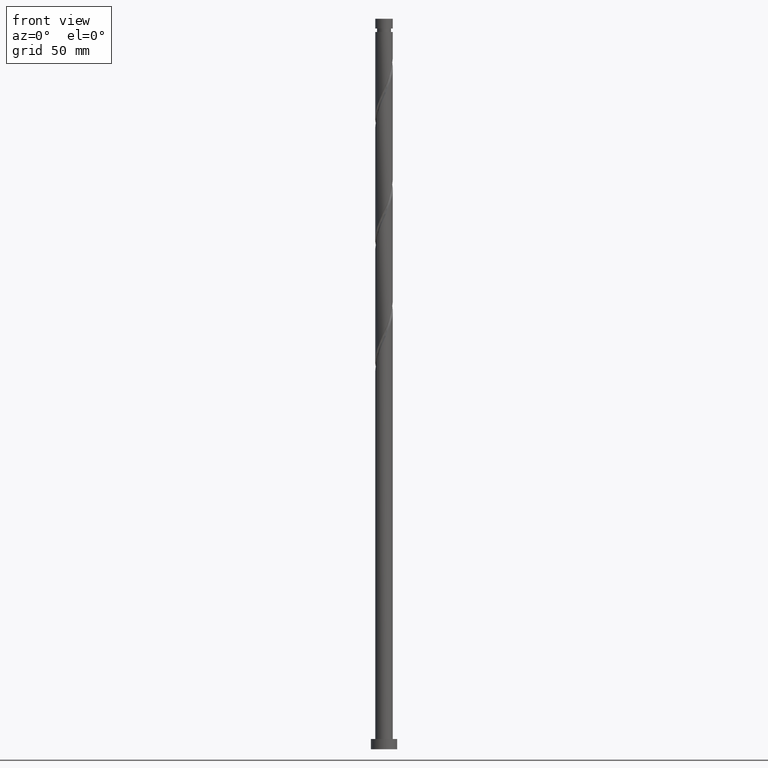
[diagram: clean part render]
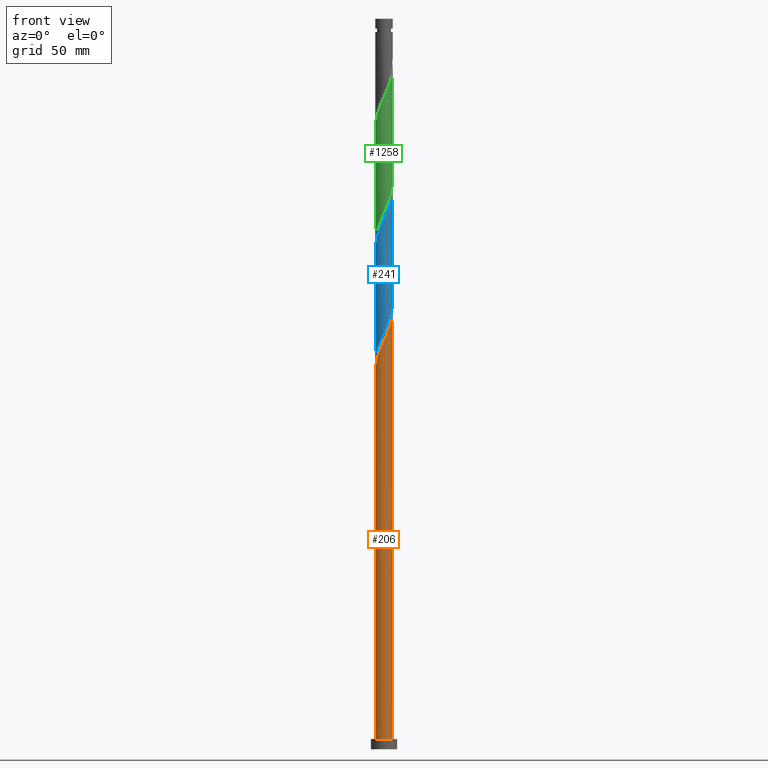
[diagram: same view with three faces highlighted in distinct colors, each labeled with its STEP entity id]
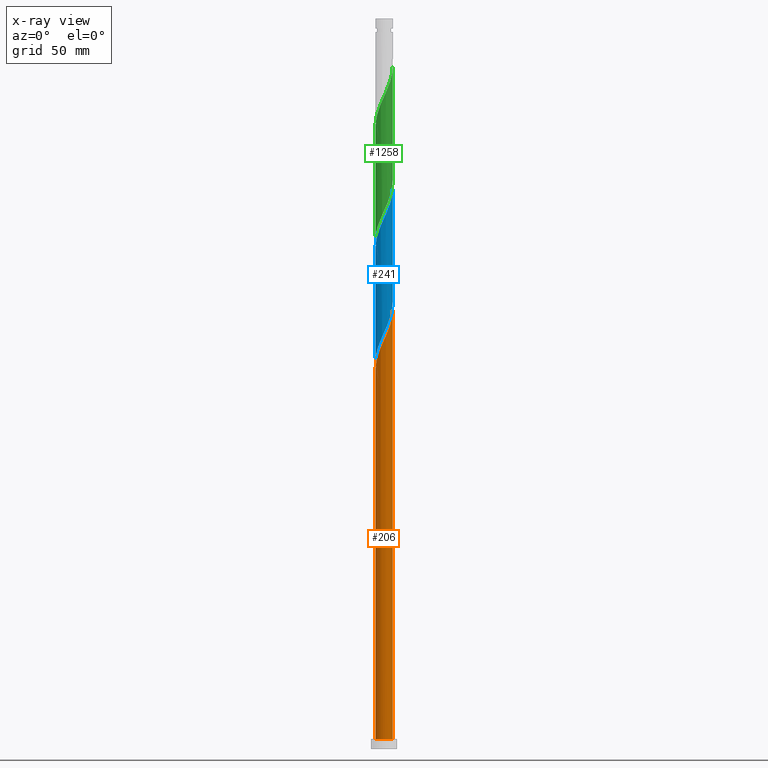
[diagram: x-ray of the same camera — body ghosted, the three highlighted faces saturated]
A machine part, front view with three faces highlighted in distinct colors.
The next image is the same camera in x-ray (body ghosted, the three faces saturated) — at least one of them is partly hidden behind the body in this view.
Their STEP definitions:

[orange] entity #206 — the highlighted cylindrical surface (edge-blend (fillet) strip) has radius 6 mm, axis along (-0, -0, -1).
#67 = CARTESIAN_POINT ( 'NONE',  ( -2.273990787862928187, -5.552383803080860325, 274.8008992748709147 ) ) ;
#78 = CARTESIAN_POINT ( 'NONE',  ( -6.000000000000011546, -0.01195592024557649673, 259.1495558513913124 ) ) ;
#85 = CARTESIAN_POINT ( 'NONE',  ( -4.225698837597089863, -4.259515152447603370, 269.5925659415376003 ) ) ;
#99 = ORIENTED_EDGE ( 'NONE', *, *, #363, .T. ) ;
#126 = CARTESIAN_POINT ( 'NONE',  ( -6.000000000000000888, 0.000000000000000000, 7.000000000000000000 ) ) ;
#142 = CARTESIAN_POINT ( 'NONE',  ( -6.000000000000010658, -1.042067320674493744E-14, 259.1232022968740694 ) ) ;
#159 = CYLINDRICAL_SURFACE ( 'NONE', #1553, 6.000000000000000888 ) ;
#176 = EDGE_CURVE ( 'NONE', #1545, #1126, #1456, .T. ) ;
#206 = ADVANCED_FACE ( 'NONE', ( #681 ), #159, .T. ) ;
#217 = DIRECTION ( 'NONE',  ( -0.000000000000000000, -0.000000000000000000, -1.000000000000000000 ) ) ;
#225 = CARTESIAN_POINT ( 'NONE',  ( 2.863233488642344060, -5.305762341528935444, 286.5196492748708579 ) ) ;
#236 = CARTESIAN_POINT ( 'NONE',  ( -5.880000000000010552, -1.193984924527949465, 261.7800659415376003 ) ) ;
#252 = CARTESIAN_POINT ( 'NONE',  ( -5.534082545362443817, -2.318173932455211084, 264.3842326082042291 ) ) ;
#333 = EDGE_CURVE ( 'NONE', #1816, #820, #1058, .T. ) ;
#363 = EDGE_CURVE ( 'NONE', #1816, #1545, #1040, .T. ) ;
#367 = CARTESIAN_POINT ( 'NONE',  ( 0.000000000000000000, 0.000000000000000000, 7.000000000000000000 ) ) ;
#379 = CARTESIAN_POINT ( 'NONE',  ( 2.318173932455211972, -5.534082545362443817, 285.2175659415376003 ) ) ;
#388 = CARTESIAN_POINT ( 'NONE',  ( 6.000000000000010658, 8.335047501442204261E-15, 300.7898689635406981 ) ) ;
#395 = CARTESIAN_POINT ( 'NONE',  ( 4.675710161127278219, -3.806173212611419387, 291.7279826082041723 ) ) ;
#421 = EDGE_CURVE ( 'NONE', #820, #1126, #2008, .T. ) ;
#444 = CARTESIAN_POINT ( 'NONE',  ( 6.000000000000010658, 8.335047501442204261E-15, 300.7898689635406981 ) ) ;
#454 = ORIENTED_EDGE ( 'NONE', *, *, #421, .F. ) ;
#478 = DIRECTION ( 'NONE',  ( 1.000000000000000000, 0.000000000000000000, 0.000000000000000000 ) ) ;
#524 = CARTESIAN_POINT ( 'NONE',  ( 0.000000000000000000, 0.000000000000000000, 500.0000000000000000 ) ) ;
#534 = CARTESIAN_POINT ( 'NONE',  ( -5.999952352179565018, -0.02391174554553879977, 259.1758992748709147 ) ) ;
#546 = CARTESIAN_POINT ( 'NONE',  ( 1.193984924527949243, -5.880000000000010552, 282.6133992748709716 ) ) ;
#555 = CARTESIAN_POINT ( 'NONE',  ( -1.147080348408325401, -5.889329900276903729, 277.4050659415376003 ) ) ;
#563 = CARTESIAN_POINT ( 'NONE',  ( -1.727128715119906399, -5.776352346998743670, 276.1029826082041723 ) ) ;
#572 = CARTESIAN_POINT ( 'NONE',  ( 5.552383803080857660, -2.273990787862928187, 295.6342326082043428 ) ) ;
#681 = FACE_OUTER_BOUND ( 'NONE', #1061, .T. ) ;
#710 = CARTESIAN_POINT ( 'NONE',  ( -5.305762341528935444, -2.863233488642344060, 265.6863159415376003 ) ) ;
#721 = CARTESIAN_POINT ( 'NONE',  ( 0.02391174554553730791, -5.999952352179565018, 280.0092326082041723 ) ) ;
#730 = CARTESIAN_POINT ( 'NONE',  ( -0.5670319816967448467, -6.002307453555063788, 278.7071492748708579 ) ) ;
#740 = CARTESIAN_POINT ( 'NONE',  ( 5.889329900276901952, -1.147080348408328732, 298.2383992748709147 ) ) ;
#820 = VERTEX_POINT ( 'NONE', #444 ) ;
#900 = CARTESIAN_POINT ( 'NONE',  ( 5.002062710145125379, -3.313513036608686235, 293.0300659415375435 ) ) ;
#933 = VECTOR ( 'NONE', #1030, 1000.000000000000000 ) ;
#999 = DIRECTION ( 'NONE',  ( -1.000000000000000000, 0.000000000000000000, 0.000000000000000000 ) ) ;
#1012 = DIRECTION ( 'NONE',  ( -0.000000000000000000, -0.000000000000000000, -1.000000000000000000 ) ) ;
#1030 = DIRECTION ( 'NONE',  ( -0.000000000000000000, -0.000000000000000000, -1.000000000000000000 ) ) ;
#1040 = LINE ( 'NONE', #1999, #933 ) ;
#1057 = CARTESIAN_POINT ( 'NONE',  ( 6.000000000000008882, -0.5788788895738985474, 299.5138888581245737 ) ) ;
#1058 =( BOUNDED_CURVE ( )  B_SPLINE_CURVE ( 2, ( #1853, #78, #534, #1834, #236, #1531, #252, #710, #1393, #2031, #85, #1547, #1845, #1209, #67, #563, #555, #730, #721, #1353, #546, #1375, #379, #225, #2016, #1202, #1870, #395, #900, #1365, #572, #1230, #740, #1057, #388 ),
 .UNSPECIFIED., .F., .T. ) 
 B_SPLINE_CURVE_WITH_KNOTS ( ( 3, 2, 2, 2, 2, 2, 2, 2, 2, 2, 2, 2, 2, 2, 2, 2, 2, 3 ),
 ( 0.05452869021808735145, 0.05468750000000000000, 0.06250000000000000000, 0.07031250000000000000, 0.07812500000000000000, 0.08593750000000000000, 0.09375000000000000000, 0.1015625000000000000, 0.1093750000000000000, 0.1171875000000000000, 0.1250000000000000000, 0.1328125000000000000, 0.1406250000000000000, 0.1484375000000000000, 0.1562500000000000000, 0.1640625000000000000, 0.1718750000000000000, 0.1795286902180870947 ),
 .UNSPECIFIED. ) 
 CURVE ( )  GEOMETRIC_REPRESENTATION_ITEM ( )  RATIONAL_B_SPLINE_CURVE ( ( 0.9089165573359503369, 0.9090019243628550960, 0.9090909090909468082, 0.9047133878838529153, 0.9090909090909468082, 0.9047133878838529153, 0.9090909090909468082, 0.9047133878838529153, 0.9090909090909468082, 0.9047133878838529153, 0.9090909090909468082, 0.9047133878838529153, 0.9090909090909468082, 0.9047133878838529153, 0.9090909090909468082, 0.9047133878838529153, 0.9090909090909468082, 0.9047133878838529153, 0.9090909090909468082, 0.9047133878838529153, 0.9090909090909468082, 0.9047133878838529153, 0.9090909090909468082, 0.9047133878838529153, 0.9090909090909468082, 0.9047133878838529153, 0.9090909090909468082, 0.9047133878838529153, 0.9090909090909468082, 0.9047133878838529153, 0.9090909090909468082, 0.9047133878838529153, 0.9090909090909468082, 0.9048023726119448495, 0.9089165573359500039 ) ) 
 REPRESENTATION_ITEM ( '' )  );
#1061 = EDGE_LOOP ( 'NONE', ( #454, #1575, #99, #1958 ) ) ;
#1068 = VECTOR ( 'NONE', #217, 1000.000000000000000 ) ;
#1126 = VERTEX_POINT ( 'NONE', #1141 ) ;
#1141 = CARTESIAN_POINT ( 'NONE',  ( 6.000000000000000888, 7.347880794884120722E-16, 7.000000000000000000 ) ) ;
#1202 = CARTESIAN_POINT ( 'NONE',  ( 3.843320143767929409, -4.645224462582758562, 289.1238159415376003 ) ) ;
#1209 = CARTESIAN_POINT ( 'NONE',  ( -2.820852860605950418, -5.328415259162975204, 273.4988159415375435 ) ) ;
#1230 = CARTESIAN_POINT ( 'NONE',  ( 5.776352346998743670, -1.727128715119906843, 296.9363159415376003 ) ) ;
#1353 = CARTESIAN_POINT ( 'NONE',  ( 0.6148554727878217108, -5.997597250804064473, 281.3113159415376003 ) ) ;
#1365 = CARTESIAN_POINT ( 'NONE',  ( 5.328415259162974316, -2.820852860605952639, 294.3321492748708579 ) ) ;
#1375 = CARTESIAN_POINT ( 'NONE',  ( 1.773114376268076331, -5.762402749195954854, 283.9154826082042860 ) ) ;
#1384 = CARTESIAN_POINT ( 'NONE',  ( 6.000000000000000888, 7.347880794884120722E-16, 500.0000000000000000 ) ) ;
#1393 = CARTESIAN_POINT ( 'NONE',  ( -4.975493402055846559, -3.353276816205137845, 266.9883992748709147 ) ) ;
#1424 = AXIS2_PLACEMENT_3D ( 'NONE', #367, #1987, #478 ) ;
#1456 = CIRCLE ( 'NONE', #1424, 6.000000000000000888 ) ;
#1531 = CARTESIAN_POINT ( 'NONE',  ( -5.762402749195954854, -1.773114376268076775, 263.0821492748709147 ) ) ;
#1545 = VERTEX_POINT ( 'NONE', #126 ) ;
#1547 = CARTESIAN_POINT ( 'NONE',  ( -3.806173212611418943, -4.675710161127278219, 270.8946492748709147 ) ) ;
#1553 = AXIS2_PLACEMENT_3D ( 'NONE', #524, #1012, #999 ) ;
#1575 = ORIENTED_EDGE ( 'NONE', *, *, #333, .F. ) ;
#1816 = VERTEX_POINT ( 'NONE', #142 ) ;
#1834 = CARTESIAN_POINT ( 'NONE',  ( -5.997597250804064473, -0.6148554727878219328, 260.4779826082042291 ) ) ;
#1845 = CARTESIAN_POINT ( 'NONE',  ( -3.313513036608685347, -5.002062710145125379, 272.1967326082042291 ) ) ;
#1853 = CARTESIAN_POINT ( 'NONE',  ( -6.000000000000010658, -1.042067320674493744E-14, 259.1232022968740694 ) ) ;
#1870 = CARTESIAN_POINT ( 'NONE',  ( 4.259515152447603370, -4.225698837597089863, 290.4258992748709147 ) ) ;
#1958 = ORIENTED_EDGE ( 'NONE', *, *, #176, .T. ) ;
#1987 = DIRECTION ( 'NONE',  ( 0.000000000000000000, 0.000000000000000000, 1.000000000000000000 ) ) ;
#1999 = CARTESIAN_POINT ( 'NONE',  ( -6.000000000000000888, 0.000000000000000000, 500.0000000000000000 ) ) ;
#2008 = LINE ( 'NONE', #1384, #1068 ) ;
#2016 = CARTESIAN_POINT ( 'NONE',  ( 3.353276816205137845, -4.975493402055846559, 287.8217326082042291 ) ) ;
#2031 = CARTESIAN_POINT ( 'NONE',  ( -4.645224462582757674, -3.843320143767929853, 268.2904826082042860 ) ) ;

[blue] entity #241 — the highlighted cylindrical surface (edge-blend (fillet) strip) has radius 6 mm, axis along (-0, -0, -1).
#2 = CARTESIAN_POINT ( 'NONE',  ( -5.762402749195954854, -1.773114376268076775, 346.4154826082042291 ) ) ;
#14 = CARTESIAN_POINT ( 'NONE',  ( 4.259515152447603370, -4.225698837597089863, 373.7592326082041723 ) ) ;
#22 = ORIENTED_EDGE ( 'NONE', *, *, #171, .T. ) ;
#28 = DIRECTION ( 'NONE',  ( -0.000000000000000000, -0.000000000000000000, -1.000000000000000000 ) ) ;
#96 = CARTESIAN_POINT ( 'NONE',  ( -5.552383803080851443, -2.273990787862920637, 269.5925659415376003 ) ) ;
#104 = CARTESIAN_POINT ( 'NONE',  ( -6.000000000000007105, -0.5788788895738660178, 265.7129096916170283 ) ) ;
#123 = CARTESIAN_POINT ( 'NONE',  ( -0.02391174554553976081, -5.999952352179555248, 285.2175659415375435 ) ) ;
#134 = CARTESIAN_POINT ( 'NONE',  ( 4.225698837597079205, -4.259515152447596265, 295.6342326082041723 ) ) ;
#156 = CARTESIAN_POINT ( 'NONE',  ( 5.776352346998743670, -1.727128715119906843, 380.2696492748708579 ) ) ;
#168 = CARTESIAN_POINT ( 'NONE',  ( -5.997597250804064473, -0.6148554727878219328, 343.8113159415376003 ) ) ;
#171 = EDGE_CURVE ( 'NONE', #509, #2027, #1478, .T. ) ;
#233 = ORIENTED_EDGE ( 'NONE', *, *, #840, .F. ) ;
#241 = ADVANCED_FACE ( 'NONE', ( #1140 ), #1974, .T. ) ;
#262 = CARTESIAN_POINT ( 'NONE',  ( 6.000000000000000000, 5.026749354067485949E-15, 306.1035962528677032 ) ) ;
#281 = CARTESIAN_POINT ( 'NONE',  ( 5.999952352179555248, -0.02391174554553997939, 306.0508992748709147 ) ) ;
#293 = CARTESIAN_POINT ( 'NONE',  ( 3.806173212611408285, -4.675710161127275555, 294.3321492748709716 ) ) ;
#309 = CARTESIAN_POINT ( 'NONE',  ( -5.328415259162966322, -2.820852860605944201, 270.8946492748709716 ) ) ;
#312 = LINE ( 'NONE', #2077, #973 ) ;
#319 = CARTESIAN_POINT ( 'NONE',  ( 5.889329900276901952, -1.147080348408328732, 381.5717326082042860 ) ) ;
#354 = CARTESIAN_POINT ( 'NONE',  ( 0.02391174554553730791, -5.999952352179565018, 363.3425659415374867 ) ) ;
#365 = CARTESIAN_POINT ( 'NONE',  ( -5.880000000000010552, -1.193984924527949465, 345.1133992748709147 ) ) ;
#413 = VERTEX_POINT ( 'NONE', #1555 ) ;
#424 = CARTESIAN_POINT ( 'NONE',  ( -5.889329900276893071, -1.147080348408322070, 266.9883992748708579 ) ) ;
#453 = CARTESIAN_POINT ( 'NONE',  ( -1.773114376268075665, -5.762402749195944196, 281.3113159415376572 ) ) ;
#466 = CARTESIAN_POINT ( 'NONE',  ( 5.305762341528925674, -2.863233488642342728, 299.5404826082042291 ) ) ;
#477 = CARTESIAN_POINT ( 'NONE',  ( 5.552383803080857660, -2.273990787862928187, 378.9675659415376572 ) ) ;
#488 = CARTESIAN_POINT ( 'NONE',  ( 1.773114376268076331, -5.762402749195954854, 367.2488159415374867 ) ) ;
#509 = VERTEX_POINT ( 'NONE', #1050 ) ;
#522 = CARTESIAN_POINT ( 'NONE',  ( -0.5670319816967448467, -6.002307453555063788, 362.0404826082041723 ) ) ;
#581 = CARTESIAN_POINT ( 'NONE',  ( -3.353276816205132516, -4.975493402055837677, 277.4050659415375435 ) ) ;
#585 = VERTEX_POINT ( 'NONE', #590 ) ;
#590 = CARTESIAN_POINT ( 'NONE',  ( 6.000000000000000000, 5.026749354067486738E-15, 306.1035962528677032 ) ) ;
#595 = AXIS2_PLACEMENT_3D ( 'NONE', #1624, #1952, #1657 ) ;
#638 = CARTESIAN_POINT ( 'NONE',  ( -2.273990787862928187, -5.552383803080860325, 358.1342326082042291 ) ) ;
#647 = EDGE_CURVE ( 'NONE', #509, #413, #1784, .T. ) ;
#667 = CARTESIAN_POINT ( 'NONE',  ( 2.318173932455211972, -5.534082545362443817, 368.5508992748708579 ) ) ;
#668 = CARTESIAN_POINT ( 'NONE',  ( -6.000000000000000888, 0.000000000000000000, 500.0000000000000000 ) ) ;
#678 = CARTESIAN_POINT ( 'NONE',  ( -1.727128715119906399, -5.776352346998743670, 359.4363159415376572 ) ) ;
#754 = CARTESIAN_POINT ( 'NONE',  ( -6.000000000000000000, 4.571042933203746211E-14, 264.4369295862009039 ) ) ;
#791 = CARTESIAN_POINT ( 'NONE',  ( 3.313513036608677798, -5.002062710145120050, 293.0300659415375435 ) ) ;
#814 = CARTESIAN_POINT ( 'NONE',  ( -3.806173212611418943, -4.675710161127278219, 354.2279826082042860 ) ) ;
#822 = CARTESIAN_POINT ( 'NONE',  ( -2.820852860605950418, -5.328415259162975204, 356.8321492748708579 ) ) ;
#831 = CARTESIAN_POINT ( 'NONE',  ( 3.843320143767929409, -4.645224462582758562, 372.4571492748708010 ) ) ;
#840 = EDGE_CURVE ( 'NONE', #585, #2027, #1512, .T. ) ;
#909 = CARTESIAN_POINT ( 'NONE',  ( 4.975493402055835901, -3.353276816205134736, 298.2383992748709716 ) ) ;
#932 = CARTESIAN_POINT ( 'NONE',  ( 1.727128715119901736, -5.776352346998731235, 289.1238159415376003 ) ) ;
#964 = CARTESIAN_POINT ( 'NONE',  ( -1.147080348408325401, -5.889329900276903729, 360.7383992748708579 ) ) ;
#973 = VECTOR ( 'NONE', #2052, 1000.000000000000000 ) ;
#986 = CARTESIAN_POINT ( 'NONE',  ( 1.193984924527949243, -5.880000000000010552, 365.9467326082042291 ) ) ;
#1008 = CARTESIAN_POINT ( 'NONE',  ( 4.675710161127278219, -3.806173212611419387, 375.0613159415374867 ) ) ;
#1020 = ORIENTED_EDGE ( 'NONE', *, *, #647, .F. ) ;
#1050 = CARTESIAN_POINT ( 'NONE',  ( -6.000000000000011546, 6.301609034520594667E-15, 342.4565356302075543 ) ) ;
#1091 = CARTESIAN_POINT ( 'NONE',  ( 5.762402749195944196, -1.773114376268074110, 302.1446492748709147 ) ) ;
#1104 = CARTESIAN_POINT ( 'NONE',  ( -2.318173932455210196, -5.534082545362432271, 280.0092326082042860 ) ) ;
#1115 = ORIENTED_EDGE ( 'NONE', *, *, #1944, .F. ) ;
#1139 = CARTESIAN_POINT ( 'NONE',  ( -6.000000000000011546, 6.301609034520594667E-15, 342.4565356302075543 ) ) ;
#1140 = FACE_OUTER_BOUND ( 'NONE', #1631, .T. ) ;
#1179 = CARTESIAN_POINT ( 'NONE',  ( 5.328415259162974316, -2.820852860605952639, 377.6654826082041723 ) ) ;
#1240 = CARTESIAN_POINT ( 'NONE',  ( -5.776352346998732123, -1.727128715119901958, 268.2904826082042860 ) ) ;
#1249 = VECTOR ( 'NONE', #28, 1000.000000000000000 ) ;
#1273 = CARTESIAN_POINT ( 'NONE',  ( 1.147080348408321404, -5.889329900276893071, 287.8217326082042291 ) ) ;
#1283 = CARTESIAN_POINT ( 'NONE',  ( -4.259515152447596265, -4.225698837597080093, 274.8008992748708579 ) ) ;
#1297 = CARTESIAN_POINT ( 'NONE',  ( -6.000000000000011546, -0.01195592024557806318, 342.4828891847246837 ) ) ;
#1317 = CARTESIAN_POINT ( 'NONE',  ( -4.975493402055846559, -3.353276816205137845, 350.3217326082042291 ) ) ;
#1329 = CARTESIAN_POINT ( 'NONE',  ( 0.6148554727878217108, -5.997597250804064473, 364.6446492748708579 ) ) ;
#1338 = CARTESIAN_POINT ( 'NONE',  ( -5.999952352179565018, -0.02391174554553879977, 342.5092326082042860 ) ) ;
#1404 = CARTESIAN_POINT ( 'NONE',  ( 5.997597250804054703, -0.6148554727878260406, 304.7488159415375435 ) ) ;
#1447 = CARTESIAN_POINT ( 'NONE',  ( -2.863233488642341840, -5.305762341528927450, 278.7071492748708579 ) ) ;
#1449 = CARTESIAN_POINT ( 'NONE',  ( -6.000000000000000000, 4.571042933203746211E-14, 264.4369295862009039 ) ) ;
#1478 = LINE ( 'NONE', #668, #1249 ) ;
#1512 =( BOUNDED_CURVE ( )  B_SPLINE_CURVE ( 2, ( #262, #1905, #281, #1404, #2040, #1091, #1579, #466, #909, #1604, #134, #293, #791, #1890, #1741, #932, #1273, #1589, #123, #1915, #1558, #453, #1104, #1447, #581, #1928, #1283, #1761, #1567, #309, #96, #1240, #424, #104, #754 ),
 .UNSPECIFIED., .F., .T. ) 
 B_SPLINE_CURVE_WITH_KNOTS ( ( 3, 2, 2, 2, 2, 2, 2, 2, 2, 2, 2, 2, 2, 2, 2, 2, 2, 3 ),
 ( 0.8045286902180871502, 0.8046875000000000000, 0.8125000000000000000, 0.8203125000000000000, 0.8281250000000000000, 0.8359375000000000000, 0.8437500000000000000, 0.8515625000000000000, 0.8593750000000000000, 0.8671875000000000000, 0.8750000000000000000, 0.8828125000000000000, 0.8906250000000000000, 0.8984375000000000000, 0.9062500000000000000, 0.9140625000000000000, 0.9218750000000000000, 0.9295286902180874833 ),
 .UNSPECIFIED. ) 
 CURVE ( )  GEOMETRIC_REPRESENTATION_ITEM ( )  RATIONAL_B_SPLINE_CURVE ( ( 0.9089165573359432315, 0.9090019243628479906, 0.9090909090909398138, 0.9047133878838459209, 0.9090909090909398138, 0.9047133878838459209, 0.9090909090909398138, 0.9047133878838459209, 0.9090909090909398138, 0.9047133878838459209, 0.9090909090909398138, 0.9047133878838459209, 0.9090909090909398138, 0.9047133878838459209, 0.9090909090909398138, 0.9047133878838459209, 0.9090909090909398138, 0.9047133878838459209, 0.9090909090909398138, 0.9047133878838459209, 0.9090909090909398138, 0.9047133878838459209, 0.9090909090909398138, 0.9047133878838459209, 0.9090909090909398138, 0.9047133878838459209, 0.9090909090909398138, 0.9047133878838459209, 0.9090909090909398138, 0.9047133878838459209, 0.9090909090909398138, 0.9047133878838459209, 0.9090909090909398138, 0.9048023726119375221, 0.9089165573359436756 ) ) 
 REPRESENTATION_ITEM ( '' )  );
#1555 = CARTESIAN_POINT ( 'NONE',  ( 6.000000000000010658, 8.335047501442204261E-15, 384.1232022968739557 ) ) ;
#1558 = CARTESIAN_POINT ( 'NONE',  ( -1.193984924527949465, -5.879999999999999005, 282.6133992748709147 ) ) ;
#1567 = CARTESIAN_POINT ( 'NONE',  ( -5.002062710145119162, -3.313513036608678242, 272.1967326082041723 ) ) ;
#1579 = CARTESIAN_POINT ( 'NONE',  ( 5.534082545362432271, -2.318173932455210196, 300.8425659415376003 ) ) ;
#1589 = CARTESIAN_POINT ( 'NONE',  ( 0.5670319816967407389, -6.002307453555054906, 286.5196492748709716 ) ) ;
#1604 = CARTESIAN_POINT ( 'NONE',  ( 4.645224462582749680, -3.843320143767924968, 296.9363159415376572 ) ) ;
#1623 = CARTESIAN_POINT ( 'NONE',  ( -5.305762341528935444, -2.863233488642344060, 349.0196492748709147 ) ) ;
#1624 = CARTESIAN_POINT ( 'NONE',  ( 0.000000000000000000, 0.000000000000000000, 500.0000000000000000 ) ) ;
#1631 = EDGE_LOOP ( 'NONE', ( #1115, #1020, #22, #233 ) ) ;
#1644 = CARTESIAN_POINT ( 'NONE',  ( -5.534082545362443817, -2.318173932455211084, 347.7175659415375435 ) ) ;
#1657 = DIRECTION ( 'NONE',  ( -1.000000000000000000, 0.000000000000000000, 0.000000000000000000 ) ) ;
#1741 = CARTESIAN_POINT ( 'NONE',  ( 2.273990787862920637, -5.552383803080851443, 290.4258992748709147 ) ) ;
#1761 = CARTESIAN_POINT ( 'NONE',  ( -4.675710161127272002, -3.806173212611411838, 273.4988159415376003 ) ) ;
#1774 = CARTESIAN_POINT ( 'NONE',  ( 3.353276816205137845, -4.975493402055846559, 371.1550659415376003 ) ) ;
#1783 = CARTESIAN_POINT ( 'NONE',  ( -4.225698837597089863, -4.259515152447603370, 352.9258992748709716 ) ) ;
#1784 =( BOUNDED_CURVE ( )  B_SPLINE_CURVE ( 2, ( #1139, #1297, #1338, #168, #365, #2, #1644, #1623, #1317, #1984, #1783, #814, #1795, #822, #638, #678, #964, #522, #354, #1329, #986, #488, #667, #1938, #1774, #831, #14, #1008, #1960, #1179, #477, #156, #319, #2094, #1807 ),
 .UNSPECIFIED., .F., .T. ) 
 B_SPLINE_CURVE_WITH_KNOTS ( ( 3, 2, 2, 2, 2, 2, 2, 2, 2, 2, 2, 2, 2, 2, 2, 2, 2, 3 ),
 ( 0.3045286902180873723, 0.3046875000000000000, 0.3125000000000000000, 0.3203125000000000000, 0.3281250000000000000, 0.3359375000000000000, 0.3437500000000000000, 0.3515625000000000000, 0.3593750000000000000, 0.3671875000000000000, 0.3750000000000000000, 0.3828125000000000000, 0.3906250000000000000, 0.3984375000000000000, 0.4062500000000000000, 0.4140625000000000000, 0.4218750000000000000, 0.4295286902180867616 ),
 .UNSPECIFIED. ) 
 CURVE ( )  GEOMETRIC_REPRESENTATION_ITEM ( )  RATIONAL_B_SPLINE_CURVE ( ( 0.9089165573359504480, 0.9090019243628550960, 0.9090909090909468082, 0.9047133878838529153, 0.9090909090909468082, 0.9047133878838529153, 0.9090909090909468082, 0.9047133878838529153, 0.9090909090909468082, 0.9047133878838529153, 0.9090909090909468082, 0.9047133878838529153, 0.9090909090909468082, 0.9047133878838529153, 0.9090909090909468082, 0.9047133878838529153, 0.9090909090909468082, 0.9047133878838529153, 0.9090909090909468082, 0.9047133878838529153, 0.9090909090909468082, 0.9047133878838529153, 0.9090909090909468082, 0.9047133878838529153, 0.9090909090909468082, 0.9047133878838529153, 0.9090909090909468082, 0.9047133878838529153, 0.9090909090909468082, 0.9047133878838529153, 0.9090909090909468082, 0.9047133878838529153, 0.9090909090909468082, 0.9048023726119449606, 0.9089165573359497818 ) ) 
 REPRESENTATION_ITEM ( '' )  );
#1795 = CARTESIAN_POINT ( 'NONE',  ( -3.313513036608685347, -5.002062710145125379, 355.5300659415376572 ) ) ;
#1807 = CARTESIAN_POINT ( 'NONE',  ( 6.000000000000010658, 8.335047501442202684E-15, 384.1232022968739557 ) ) ;
#1890 = CARTESIAN_POINT ( 'NONE',  ( 2.820852860605943313, -5.328415259162966322, 291.7279826082041723 ) ) ;
#1905 = CARTESIAN_POINT ( 'NONE',  ( 6.000000000000000888, -0.01195592024556257037, 306.0772426983504602 ) ) ;
#1915 = CARTESIAN_POINT ( 'NONE',  ( -0.6148554727878233761, -5.997597250804055591, 283.9154826082041723 ) ) ;
#1928 = CARTESIAN_POINT ( 'NONE',  ( -3.843320143767924080, -4.645224462582749680, 276.1029826082041723 ) ) ;
#1938 = CARTESIAN_POINT ( 'NONE',  ( 2.863233488642344060, -5.305762341528935444, 369.8529826082041723 ) ) ;
#1944 = EDGE_CURVE ( 'NONE', #413, #585, #312, .T. ) ;
#1952 = DIRECTION ( 'NONE',  ( -0.000000000000000000, -0.000000000000000000, -1.000000000000000000 ) ) ;
#1960 = CARTESIAN_POINT ( 'NONE',  ( 5.002062710145125379, -3.313513036608686235, 376.3633992748709716 ) ) ;
#1974 = CYLINDRICAL_SURFACE ( 'NONE', #595, 6.000000000000000888 ) ;
#1984 = CARTESIAN_POINT ( 'NONE',  ( -4.645224462582757674, -3.843320143767929853, 351.6238159415375435 ) ) ;
#2027 = VERTEX_POINT ( 'NONE', #1449 ) ;
#2040 = CARTESIAN_POINT ( 'NONE',  ( 5.879999999999999005, -1.193984924527949465, 303.4467326082042291 ) ) ;
#2052 = DIRECTION ( 'NONE',  ( -0.000000000000000000, -0.000000000000000000, -1.000000000000000000 ) ) ;
#2077 = CARTESIAN_POINT ( 'NONE',  ( 6.000000000000000888, 7.347880794884120722E-16, 500.0000000000000000 ) ) ;
#2094 = CARTESIAN_POINT ( 'NONE',  ( 6.000000000000005329, -0.5788788895739235274, 382.8472221914581155 ) ) ;

[green] entity #1258 — the highlighted cylindrical surface (edge-blend (fillet) strip) has radius 6 mm, axis along (-0, -0, -1).
#3 = CARTESIAN_POINT ( 'NONE',  ( -2.863233488642341840, -5.305762341528927450, 362.0404826082042860 ) ) ;
#15 = CARTESIAN_POINT ( 'NONE',  ( 1.147080348408321404, -5.889329900276893071, 371.1550659415375435 ) ) ;
#38 = CARTESIAN_POINT ( 'NONE',  ( -4.675710161127272002, -3.806173212611411838, 356.8321492748708010 ) ) ;
#39 = CARTESIAN_POINT ( 'NONE',  ( -4.225698837597089863, -4.259515152447603370, 436.2592326082041723 ) ) ;
#48 = CARTESIAN_POINT ( 'NONE',  ( 0.6148554727878217108, -5.997597250804064473, 447.9779826082041723 ) ) ;
#71 = CARTESIAN_POINT ( 'NONE',  ( 3.353276816205137845, -4.975493402055846559, 454.4883992748709147 ) ) ;
#81 = CARTESIAN_POINT ( 'NONE',  ( 6.000000000000000000, 5.026749354067486738E-15, 389.4369295862010745 ) ) ;
#82 = EDGE_CURVE ( 'NONE', #550, #1463, #1572, .T. ) ;
#114 = LINE ( 'NONE', #942, #499 ) ;
#145 = ORIENTED_EDGE ( 'NONE', *, *, #82, .F. ) ;
#170 = CARTESIAN_POINT ( 'NONE',  ( 2.273990787862920637, -5.552383803080851443, 373.7592326082041154 ) ) ;
#182 = CARTESIAN_POINT ( 'NONE',  ( 3.806173212611408285, -4.675710161127275555, 377.6654826082042860 ) ) ;
#183 = CARTESIAN_POINT ( 'NONE',  ( -3.806173212611418943, -4.675710161127278219, 437.5613159415373730 ) ) ;
#208 = CARTESIAN_POINT ( 'NONE',  ( -0.5670319816967448467, -6.002307453555063788, 445.3738159415375435 ) ) ;
#213 = CARTESIAN_POINT ( 'NONE',  ( 6.000000000000000888, 7.347880794884120722E-16, 500.0000000000000000 ) ) ;
#220 = CARTESIAN_POINT ( 'NONE',  ( 5.002062710145125379, -3.313513036608686235, 459.6967326082041723 ) ) ;
#320 = CARTESIAN_POINT ( 'NONE',  ( -5.002062710145119162, -3.313513036608678242, 355.5300659415374867 ) ) ;
#332 = CARTESIAN_POINT ( 'NONE',  ( 1.727128715119901736, -5.776352346998731235, 372.4571492748709147 ) ) ;
#345 = CARTESIAN_POINT ( 'NONE',  ( -1.193984924527949465, -5.879999999999999005, 365.9467326082041723 ) ) ;
#356 = CARTESIAN_POINT ( 'NONE',  ( -1.773114376268075665, -5.762402749195944196, 364.6446492748709147 ) ) ;
#359 = DIRECTION ( 'NONE',  ( -1.000000000000000000, 0.000000000000000000, 0.000000000000000000 ) ) ;
#368 = VECTOR ( 'NONE', #863, 1000.000000000000000 ) ;
#380 = CARTESIAN_POINT ( 'NONE',  ( 0.000000000000000000, 0.000000000000000000, 500.0000000000000000 ) ) ;
#405 = CARTESIAN_POINT ( 'NONE',  ( 6.000000000000000000, 5.026749354067486738E-15, 389.4369295862010745 ) ) ;
#408 = CARTESIAN_POINT ( 'NONE',  ( 6.000000000000012434, -0.5788788895738863349, 466.1805555247914867 ) ) ;
#410 = CARTESIAN_POINT ( 'NONE',  ( 5.534082545362432271, -2.318173932455210196, 384.1758992748709147 ) ) ;
#485 = CARTESIAN_POINT ( 'NONE',  ( -6.000000000000011546, 1.465715866532681281E-14, 425.7898689635407550 ) ) ;
#499 = VECTOR ( 'NONE', #625, 1000.000000000000000 ) ;
#504 = CARTESIAN_POINT ( 'NONE',  ( 4.645224462582749680, -3.843320143767924968, 380.2696492748709716 ) ) ;
#514 = CARTESIAN_POINT ( 'NONE',  ( -3.313513036608685347, -5.002062710145125379, 438.8633992748708579 ) ) ;
#536 = CARTESIAN_POINT ( 'NONE',  ( 2.318173932455211972, -5.534082545362443817, 451.8842326082041154 ) ) ;
#550 = VERTEX_POINT ( 'NONE', #405 ) ;
#568 = CARTESIAN_POINT ( 'NONE',  ( 5.999999999999999112, -0.01195592024553748974, 389.4105760316837177 ) ) ;
#580 = CARTESIAN_POINT ( 'NONE',  ( -6.000000000000012434, 1.465715866532681281E-14, 425.7898689635407550 ) ) ;
#625 = DIRECTION ( 'NONE',  ( -0.000000000000000000, -0.000000000000000000, -1.000000000000000000 ) ) ;
#626 = CARTESIAN_POINT ( 'NONE',  ( 5.999952352179555248, -0.02391174554553997939, 389.3842326082041723 ) ) ;
#634 = VERTEX_POINT ( 'NONE', #580 ) ;
#635 = AXIS2_PLACEMENT_3D ( 'NONE', #380, #1812, #359 ) ;
#655 = CARTESIAN_POINT ( 'NONE',  ( -6.000000000000000888, 2.899187475065619010E-14, 347.7702629195342752 ) ) ;
#690 = CARTESIAN_POINT ( 'NONE',  ( 0.02391174554553730791, -5.999952352179565018, 446.6758992748709147 ) ) ;
#702 = CARTESIAN_POINT ( 'NONE',  ( 1.193984924527949243, -5.880000000000010552, 449.2800659415376003 ) ) ;
#707 = VERTEX_POINT ( 'NONE', #1722 ) ;
#725 = CARTESIAN_POINT ( 'NONE',  ( 3.843320143767929409, -4.645224462582758562, 455.7904826082042291 ) ) ;
#733 = CARTESIAN_POINT ( 'NONE',  ( 5.776352346998743670, -1.727128715119906843, 463.6029826082042291 ) ) ;
#770 = EDGE_CURVE ( 'NONE', #634, #1463, #114, .T. ) ;
#834 = CARTESIAN_POINT ( 'NONE',  ( -5.328415259162966322, -2.820852860605944201, 354.2279826082041723 ) ) ;
#863 = DIRECTION ( 'NONE',  ( -0.000000000000000000, -0.000000000000000000, -1.000000000000000000 ) ) ;
#886 = CARTESIAN_POINT ( 'NONE',  ( 5.552383803080857660, -2.273990787862928187, 462.3008992748709147 ) ) ;
#942 = CARTESIAN_POINT ( 'NONE',  ( -6.000000000000000888, 0.000000000000000000, 500.0000000000000000 ) ) ;
#954 = CARTESIAN_POINT ( 'NONE',  ( -5.997597250804064473, -0.6148554727878219328, 427.1446492748709147 ) ) ;
#978 = CARTESIAN_POINT ( 'NONE',  ( -2.318173932455210196, -5.534082545362432271, 363.3425659415375435 ) ) ;
#980 = CYLINDRICAL_SURFACE ( 'NONE', #635, 6.000000000000000888 ) ;
#988 = CARTESIAN_POINT ( 'NONE',  ( -0.02391174554553976081, -5.999952352179555248, 368.5508992748709147 ) ) ;
#1000 = CARTESIAN_POINT ( 'NONE',  ( -1.727128715119906399, -5.776352346998743670, 442.7696492748708010 ) ) ;
#1033 = CARTESIAN_POINT ( 'NONE',  ( 2.863233488642344060, -5.305762341528935444, 453.1863159415374867 ) ) ;
#1096 = CARTESIAN_POINT ( 'NONE',  ( -5.999952352179565018, -0.02391174554553879977, 425.8425659415376572 ) ) ;
#1099 = ORIENTED_EDGE ( 'NONE', *, *, #1470, .F. ) ;
#1130 = CARTESIAN_POINT ( 'NONE',  ( -6.000000000000004441, -0.5788788895738742335, 349.0462430249504564 ) ) ;
#1148 = EDGE_LOOP ( 'NONE', ( #1177, #1099, #1370, #145 ) ) ;
#1149 = CARTESIAN_POINT ( 'NONE',  ( -6.000000000000010658, -0.01195592024554462292, 425.8162225180579412 ) ) ;
#1154 = CARTESIAN_POINT ( 'NONE',  ( -4.259515152447596265, -4.225698837597080093, 358.1342326082042291 ) ) ;
#1169 = CARTESIAN_POINT ( 'NONE',  ( -2.820852860605950418, -5.328415259162975204, 440.1654826082041154 ) ) ;
#1177 = ORIENTED_EDGE ( 'NONE', *, *, #1568, .F. ) ;
#1198 = LINE ( 'NONE', #213, #368 ) ;
#1224 = CARTESIAN_POINT ( 'NONE',  ( 5.889329900276901952, -1.147080348408328732, 464.9050659415374298 ) ) ;
#1226 = CARTESIAN_POINT ( 'NONE',  ( 5.879999999999999005, -1.193984924527949465, 386.7800659415375435 ) ) ;
#1258 = ADVANCED_FACE ( 'NONE', ( #1524 ), #980, .T. ) ;
#1284 = CARTESIAN_POINT ( 'NONE',  ( 5.997597250804054703, -0.6148554727878260406, 388.0821492748709716 ) ) ;
#1305 = CARTESIAN_POINT ( 'NONE',  ( -6.000000000000000888, 2.899187475065619010E-14, 347.7702629195342752 ) ) ;
#1331 = CARTESIAN_POINT ( 'NONE',  ( -5.552383803080851443, -2.273990787862920637, 352.9258992748708579 ) ) ;
#1341 = CARTESIAN_POINT ( 'NONE',  ( 0.5670319816967407389, -6.002307453555054906, 369.8529826082041723 ) ) ;
#1342 = CARTESIAN_POINT ( 'NONE',  ( -1.147080348408325401, -5.889329900276903729, 444.0717326082042860 ) ) ;
#1359 = CARTESIAN_POINT ( 'NONE',  ( 4.259515152447603370, -4.225698837597089863, 457.0925659415375435 ) ) ;
#1370 = ORIENTED_EDGE ( 'NONE', *, *, #770, .T. ) ;
#1378 = CARTESIAN_POINT ( 'NONE',  ( 5.328415259162974316, -2.820852860605952639, 460.9988159415375435 ) ) ;
#1429 = CARTESIAN_POINT ( 'NONE',  ( 6.000000000000010658, -2.050212936401257795E-17, 467.4565356302072701 ) ) ;
#1463 = VERTEX_POINT ( 'NONE', #1305 ) ;
#1467 = CARTESIAN_POINT ( 'NONE',  ( -0.6148554727878233761, -5.997597250804055591, 367.2488159415376572 ) ) ;
#1470 = EDGE_CURVE ( 'NONE', #634, #707, #2070, .T. ) ;
#1489 = CARTESIAN_POINT ( 'NONE',  ( 2.820852860605943313, -5.328415259162966322, 375.0613159415376003 ) ) ;
#1490 = CARTESIAN_POINT ( 'NONE',  ( -5.534082545362443817, -2.318173932455211084, 431.0508992748709147 ) ) ;
#1502 = CARTESIAN_POINT ( 'NONE',  ( -5.889329900276893071, -1.147080348408322070, 350.3217326082042860 ) ) ;
#1524 = FACE_OUTER_BOUND ( 'NONE', #1148, .T. ) ;
#1550 = CARTESIAN_POINT ( 'NONE',  ( 5.305762341528925674, -2.863233488642342728, 382.8738159415375435 ) ) ;
#1568 = EDGE_CURVE ( 'NONE', #707, #550, #1198, .T. ) ;
#1572 =( BOUNDED_CURVE ( )  B_SPLINE_CURVE ( 2, ( #81, #568, #626, #1284, #1226, #1865, #410, #1550, #1939, #504, #1668, #182, #1646, #1489, #170, #332, #15, #1341, #988, #1467, #345, #356, #978, #3, #1636, #1785, #1154, #38, #320, #834, #1331, #1775, #1502, #1130, #655 ),
 .UNSPECIFIED., .F., .T. ) 
 B_SPLINE_CURVE_WITH_KNOTS ( ( 3, 2, 2, 2, 2, 2, 2, 2, 2, 2, 2, 2, 2, 2, 2, 2, 2, 3 ),
 ( 0.5545286902180868172, 0.5546875000000000000, 0.5625000000000000000, 0.5703125000000000000, 0.5781250000000000000, 0.5859375000000000000, 0.5937500000000000000, 0.6015625000000000000, 0.6093750000000000000, 0.6171875000000000000, 0.6250000000000000000, 0.6328125000000000000, 0.6406250000000000000, 0.6484375000000000000, 0.6562500000000000000, 0.6640625000000000000, 0.6718750000000000000, 0.6795286902180873723 ),
 .UNSPECIFIED. ) 
 CURVE ( )  GEOMETRIC_REPRESENTATION_ITEM ( )  RATIONAL_B_SPLINE_CURVE ( ( 0.9089165573359428985, 0.9090019243628478796, 0.9090909090909398138, 0.9047133878838459209, 0.9090909090909398138, 0.9047133878838459209, 0.9090909090909398138, 0.9047133878838459209, 0.9090909090909398138, 0.9047133878838459209, 0.9090909090909398138, 0.9047133878838459209, 0.9090909090909398138, 0.9047133878838459209, 0.9090909090909398138, 0.9047133878838459209, 0.9090909090909398138, 0.9047133878838459209, 0.9090909090909398138, 0.9047133878838459209, 0.9090909090909398138, 0.9047133878838459209, 0.9090909090909398138, 0.9047133878838459209, 0.9090909090909398138, 0.9047133878838459209, 0.9090909090909398138, 0.9047133878838459209, 0.9090909090909398138, 0.9047133878838459209, 0.9090909090909398138, 0.9047133878838459209, 0.9090909090909398138, 0.9048023726119376331, 0.9089165573359433425 ) ) 
 REPRESENTATION_ITEM ( '' )  );
#1636 = CARTESIAN_POINT ( 'NONE',  ( -3.353276816205132516, -4.975493402055837677, 360.7383992748709147 ) ) ;
#1646 = CARTESIAN_POINT ( 'NONE',  ( 3.313513036608677798, -5.002062710145120050, 376.3633992748707442 ) ) ;
#1647 = CARTESIAN_POINT ( 'NONE',  ( -4.645224462582757674, -3.843320143767929853, 434.9571492748708579 ) ) ;
#1668 = CARTESIAN_POINT ( 'NONE',  ( 4.225698837597079205, -4.259515152447596265, 378.9675659415376003 ) ) ;
#1722 = CARTESIAN_POINT ( 'NONE',  ( 6.000000000000010658, -2.050212936401257795E-17, 467.4565356302072701 ) ) ;
#1775 = CARTESIAN_POINT ( 'NONE',  ( -5.776352346998732123, -1.727128715119901958, 351.6238159415376003 ) ) ;
#1785 = CARTESIAN_POINT ( 'NONE',  ( -3.843320143767924080, -4.645224462582749680, 359.4363159415376003 ) ) ;
#1797 = CARTESIAN_POINT ( 'NONE',  ( -5.305762341528935444, -2.863233488642344060, 432.3529826082041154 ) ) ;
#1810 = CARTESIAN_POINT ( 'NONE',  ( -4.975493402055846559, -3.353276816205137845, 433.6550659415374867 ) ) ;
#1812 = DIRECTION ( 'NONE',  ( -0.000000000000000000, -0.000000000000000000, -1.000000000000000000 ) ) ;
#1838 = CARTESIAN_POINT ( 'NONE',  ( 4.675710161127278219, -3.806173212611419387, 458.3946492748709147 ) ) ;
#1846 = CARTESIAN_POINT ( 'NONE',  ( -5.880000000000010552, -1.193984924527949465, 428.4467326082041154 ) ) ;
#1865 = CARTESIAN_POINT ( 'NONE',  ( 5.762402749195944196, -1.773114376268074110, 385.4779826082041723 ) ) ;
#1939 = CARTESIAN_POINT ( 'NONE',  ( 4.975493402055835901, -3.353276816205134736, 381.5717326082041723 ) ) ;
#1962 = CARTESIAN_POINT ( 'NONE',  ( -5.762402749195954854, -1.773114376268076775, 429.7488159415375435 ) ) ;
#1988 = CARTESIAN_POINT ( 'NONE',  ( -2.273990787862928187, -5.552383803080860325, 441.4675659415374867 ) ) ;
#2000 = CARTESIAN_POINT ( 'NONE',  ( 1.773114376268076331, -5.762402749195954854, 450.5821492748708579 ) ) ;
#2070 =( BOUNDED_CURVE ( )  B_SPLINE_CURVE ( 2, ( #485, #1149, #1096, #954, #1846, #1962, #1490, #1797, #1810, #1647, #39, #183, #514, #1169, #1988, #1000, #1342, #208, #690, #48, #702, #2000, #536, #1033, #71, #725, #1359, #1838, #220, #1378, #886, #733, #1224, #408, #1429 ),
 .UNSPECIFIED., .F., .T. ) 
 B_SPLINE_CURVE_WITH_KNOTS ( ( 3, 2, 2, 2, 2, 2, 2, 2, 2, 2, 2, 2, 2, 2, 2, 2, 2, 3 ),
 ( 0.5545286902180869282, 0.5546875000000000000, 0.5625000000000000000, 0.5703125000000000000, 0.5781250000000000000, 0.5859375000000000000, 0.5937500000000000000, 0.6015625000000000000, 0.6093750000000000000, 0.6171875000000000000, 0.6250000000000000000, 0.6328125000000000000, 0.6406250000000000000, 0.6484375000000000000, 0.6562500000000000000, 0.6640625000000000000, 0.6718750000000000000, 0.6795286902180872612 ),
 .UNSPECIFIED. ) 
 CURVE ( )  GEOMETRIC_REPRESENTATION_ITEM ( )  RATIONAL_B_SPLINE_CURVE ( ( 0.9089165573359500039, 0.9090019243628548740, 0.9090909090909468082, 0.9047133878838529153, 0.9090909090909468082, 0.9047133878838529153, 0.9090909090909468082, 0.9047133878838529153, 0.9090909090909468082, 0.9047133878838529153, 0.9090909090909468082, 0.9047133878838529153, 0.9090909090909468082, 0.9047133878838529153, 0.9090909090909468082, 0.9047133878838529153, 0.9090909090909468082, 0.9047133878838529153, 0.9090909090909468082, 0.9047133878838529153, 0.9090909090909468082, 0.9047133878838529153, 0.9090909090909468082, 0.9047133878838529153, 0.9090909090909468082, 0.9047133878838529153, 0.9090909090909468082, 0.9047133878838529153, 0.9090909090909468082, 0.9047133878838529153, 0.9090909090909468082, 0.9047133878838529153, 0.9090909090909468082, 0.9048023726119446275, 0.9089165573359503369 ) ) 
 REPRESENTATION_ITEM ( '' )  );